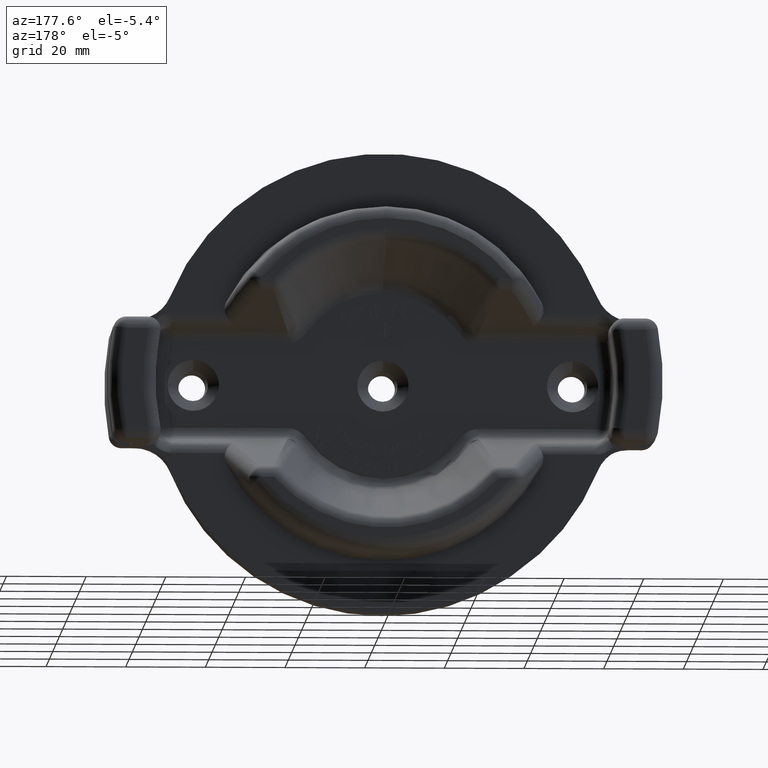
[diagram: clean part render]
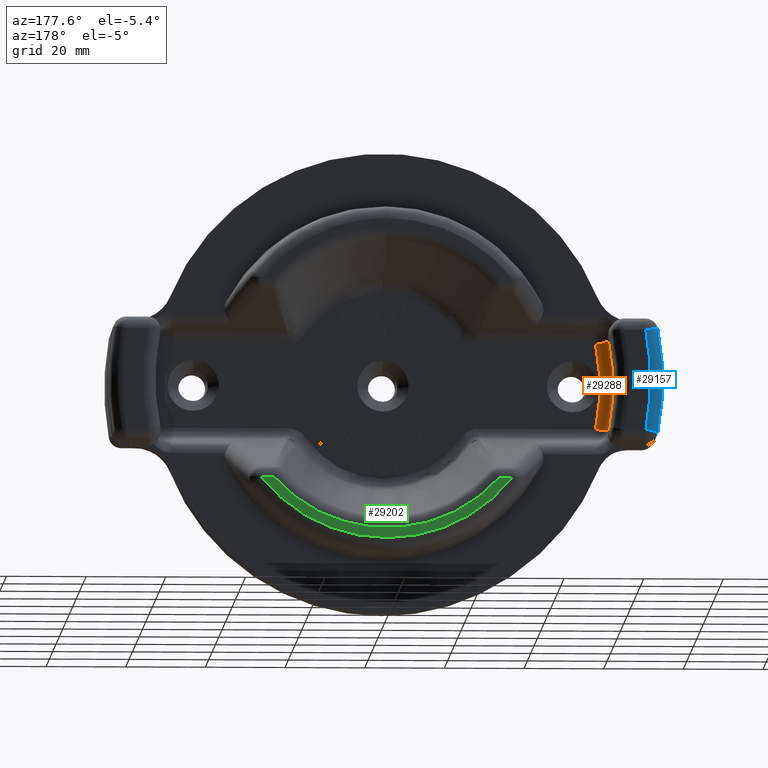
[diagram: same view with three faces highlighted in distinct colors, each labeled with its STEP entity id]
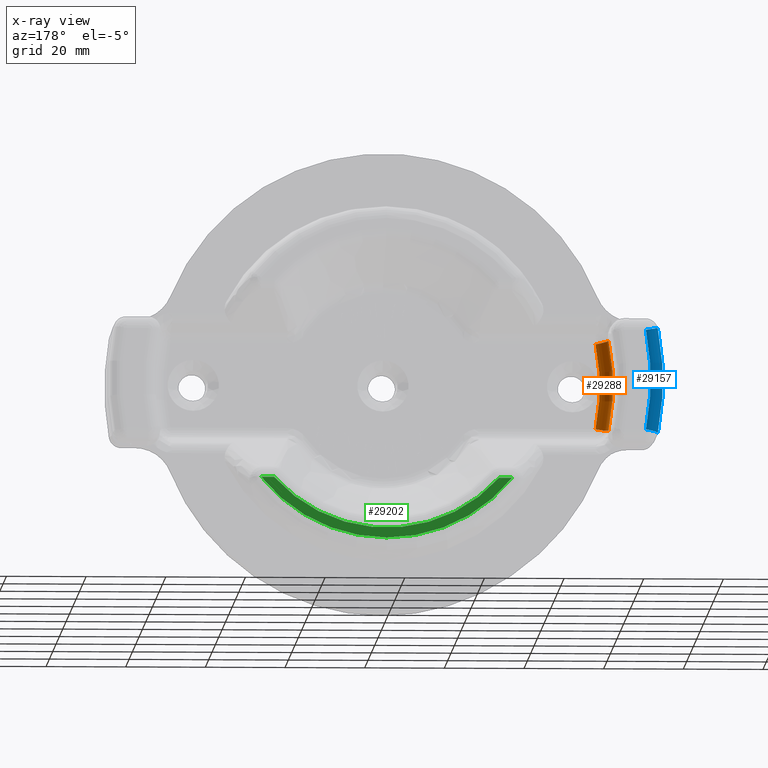
[diagram: x-ray of the same camera — body ghosted, the three highlighted faces saturated]
A machine part, auxiliary view with three faces highlighted in distinct colors.
The next image is the same camera in x-ray (body ghosted, the three faces saturated) — at least one of them is partly hidden behind the body in this view.
Their STEP definitions:

[orange] entity #29288 — the highlighted toroidal blend (fillet) surface has major radius 54.4461 mm and minor (blend) radius 3.175 mm.
#1205 = CARTESIAN_POINT ( 'NONE',  ( 0.0000000000000000000, 0.4978184491953395200, 0.0000000000000000000 ) ) ;
#1208 = DIRECTION ( 'NONE',  ( -0.0000000000000000000, -1.000000000000000000, -0.0000000000000000000 ) ) ;
#1209 = DIRECTION ( 'NONE',  ( 0.0000000000000000000, 0.0000000000000000000, 1.000000000000000000 ) ) ;
#2585 = CARTESIAN_POINT ( 'NONE',  ( -2.224479389068684000, 0.4978184491951426800, 0.4448759446635918700 ) ) ;
#2586 = CARTESIAN_POINT ( 'NONE',  ( -2.224479389068668500, 0.4978184491953395200, -0.4448759446636888500 ) ) ;
#3630 = CIRCLE ( 'NONE', #12365, 2.143547891466528500 ) ;
#3754 = EDGE_LOOP ( 'NONE', ( #15583, #15582, #15577, #15602 ) ) ;
#6840 = CARTESIAN_POINT ( 'NONE',  ( -2.101925261820744200, 0.3750000000000000600, -0.4203662173990631000 ) ) ;
#6877 = CARTESIAN_POINT ( 'NONE',  ( -2.101925261820744200, 0.3750000000000000600, 0.4203662173990632700 ) ) ;
#10179 = VERTEX_POINT ( 'NONE', #2585 ) ;
#10180 = VERTEX_POINT ( 'NONE', #2586 ) ;
#11839 = AXIS2_PLACEMENT_3D ( 'NONE', #25211, #25215, #25219 ) ;
#12365 = AXIS2_PLACEMENT_3D ( 'NONE', #29494, #29515, #29516 ) ;
#12436 = AXIS2_PLACEMENT_3D ( 'NONE', #22175, #22176, #22177 ) ;
#12437 = AXIS2_PLACEMENT_3D ( 'NONE', #22178, #22180, #22181 ) ;
#15577 = ORIENTED_EDGE ( 'NONE', *, *, #24147, .T. ) ;
#15582 = ORIENTED_EDGE ( 'NONE', *, *, #21729, .F. ) ;
#15583 = ORIENTED_EDGE ( 'NONE', *, *, #24146, .T. ) ;
#15602 = ORIENTED_EDGE ( 'NONE', *, *, #16438, .F. ) ;
#16438 = EDGE_CURVE ( 'NONE', #10179, #10180, #28478, .T. ) ;
#21062 = AXIS2_PLACEMENT_3D ( 'NONE', #1205, #1208, #1209 ) ;
#21729 = EDGE_CURVE ( 'NONE', #28753, #28775, #3630, .T. ) ;
#22175 = CARTESIAN_POINT ( 'NONE',  ( -2.101925261820744200, 0.4999999999999997200, 0.4203662173990630500 ) ) ;
#22176 = DIRECTION ( 'NONE',  ( 0.1961076862643361400, 1.071520787046638400E-015, 0.9805823654278353900 ) ) ;
#22177 = DIRECTION ( 'NONE',  ( 0.9805823654278353900, 0.0000000000000000000, -0.1961076862643361400 ) ) ;
#22178 = CARTESIAN_POINT ( 'NONE',  ( -2.101925261820744200, 0.5000000000000000000, -0.4203662173990632700 ) ) ;
#22180 = DIRECTION ( 'NONE',  ( 0.1961076862674923100, 0.0000000000000000000, -0.9805823654272041200 ) ) ;
#22181 = DIRECTION ( 'NONE',  ( -0.9805823654272042300, 0.0000000000000000000, -0.1961076862674920900 ) ) ;
#24146 = EDGE_CURVE ( 'NONE', #10179, #28775, #30176, .T. ) ;
#24147 = EDGE_CURVE ( 'NONE', #28753, #10180, #30177, .T. ) ;
#25211 = CARTESIAN_POINT ( 'NONE',  ( 0.0000000000000000000, 0.5000000000000000000, 0.0000000000000000000 ) ) ;
#25215 = DIRECTION ( 'NONE',  ( 0.0000000000000000000, 1.000000000000000000, 0.0000000000000000000 ) ) ;
#25219 = DIRECTION ( 'NONE',  ( 0.0000000000000000000, 0.0000000000000000000, 1.000000000000000000 ) ) ;
#26199 = TOROIDAL_SURFACE ( 'NONE', #11839, 2.143547891466528500, 0.1250000000000000000 ) ;
#26202 = FACE_OUTER_BOUND ( 'NONE', #3754, .T. ) ;
#28478 = CIRCLE ( 'NONE', #21062, 2.268528853361077700 ) ;
#28753 = VERTEX_POINT ( 'NONE', #6840 ) ;
#28775 = VERTEX_POINT ( 'NONE', #6877 ) ;
#29288 = ADVANCED_FACE ( 'NONE', ( #26202 ), #26199, .F. ) ;
#29494 = CARTESIAN_POINT ( 'NONE',  ( 0.0000000000000000000, 0.3750000000000000600, 0.0000000000000000000 ) ) ;
#29515 = DIRECTION ( 'NONE',  ( 0.0000000000000000000, 1.000000000000000000, 0.0000000000000000000 ) ) ;
#29516 = DIRECTION ( 'NONE',  ( 0.0000000000000000000, 0.0000000000000000000, 1.000000000000000000 ) ) ;
#30176 = CIRCLE ( 'NONE', #12436, 0.1250000000000000300 ) ;
#30177 = CIRCLE ( 'NONE', #12437, 0.1249999999999999700 ) ;

[blue] entity #29157 — the highlighted toroidal blend (fillet) surface has major radius 66.3829 mm and minor (blend) radius 3.175 mm.
#1144 = CARTESIAN_POINT ( 'NONE',  ( 0.0000000000000000000, 1.155000000000000000, 0.0000000000000000000 ) ) ;
#1147 = DIRECTION ( 'NONE',  ( 0.0000000000000000000, 1.000000000000000000, 0.0000000000000000000 ) ) ;
#1148 = DIRECTION ( 'NONE',  ( 0.0000000000000000000, 0.0000000000000000000, 1.000000000000000000 ) ) ;
#1174 = CARTESIAN_POINT ( 'NONE',  ( 0.0000000000000000000, 1.030000000000000200, 0.0000000000000000000 ) ) ;
#1179 = DIRECTION ( 'NONE',  ( -0.0000000000000000000, -1.000000000000000000, -0.0000000000000000000 ) ) ;
#1180 = DIRECTION ( 'NONE',  ( 0.0000000000000000000, 0.0000000000000000000, 1.000000000000000000 ) ) ;
#2572 = CARTESIAN_POINT ( 'NONE',  ( -2.689353734233851200, 1.030000000000005100, 0.5164869235154344600 ) ) ;
#2577 = CARTESIAN_POINT ( 'NONE',  ( -2.689353734233851200, 1.030000000000053300, -0.5164869235154336800 ) ) ;
#3651 = CIRCLE ( 'NONE', #12382, 0.1249999999999997500 ) ;
#3652 = CIRCLE ( 'NONE', #12383, 0.1249999999999997900 ) ;
#3897 = ORIENTED_EDGE ( 'NONE', *, *, #21751, .F. ) ;
#3898 = ORIENTED_EDGE ( 'NONE', *, *, #16430, .F. ) ;
#5745 = DIRECTION ( 'NONE',  ( 0.0000000000000000000, 1.000000000000000000, 0.0000000000000000000 ) ) ;
#5755 = CARTESIAN_POINT ( 'NONE',  ( 0.0000000000000000000, 1.030000000000000200, 0.0000000000000000000 ) ) ;
#5760 = DIRECTION ( 'NONE',  ( 0.0000000000000000000, 0.0000000000000000000, 1.000000000000000000 ) ) ;
#8405 = EDGE_LOOP ( 'NONE', ( #26481, #26482, #3897, #3898 ) ) ;
#10166 = VERTEX_POINT ( 'NONE', #2572 ) ;
#10167 = VERTEX_POINT ( 'NONE', #2577 ) ;
#11646 = AXIS2_PLACEMENT_3D ( 'NONE', #5755, #5745, #5760 ) ;
#12382 = AXIS2_PLACEMENT_3D ( 'NONE', #29586, #29587, #29588 ) ;
#12383 = AXIS2_PLACEMENT_3D ( 'NONE', #29590, #29598, #29599 ) ;
#14510 = VERTEX_POINT ( 'NONE', #14942 ) ;
#14513 = VERTEX_POINT ( 'NONE', #14945 ) ;
#14942 = CARTESIAN_POINT ( 'NONE',  ( -2.566597036487190800, 1.155000000000000000, 0.4929116576985888000 ) ) ;
#14945 = CARTESIAN_POINT ( 'NONE',  ( -2.566597036487190000, 1.155000000000000000, -0.4929116576985898600 ) ) ;
#16422 = EDGE_CURVE ( 'NONE', #14513, #14510, #28468, .T. ) ;
#16430 = EDGE_CURVE ( 'NONE', #10166, #10167, #28471, .T. ) ;
#21055 = AXIS2_PLACEMENT_3D ( 'NONE', #1144, #1147, #1148 ) ;
#21064 = AXIS2_PLACEMENT_3D ( 'NONE', #1174, #1179, #1180 ) ;
#21749 = EDGE_CURVE ( 'NONE', #10166, #14510, #3651, .T. ) ;
#21751 = EDGE_CURVE ( 'NONE', #10167, #14513, #3652, .T. ) ;
#26481 = ORIENTED_EDGE ( 'NONE', *, *, #21749, .T. ) ;
#26482 = ORIENTED_EDGE ( 'NONE', *, *, #16422, .F. ) ;
#28468 = CIRCLE ( 'NONE', #21055, 2.613500000000000600 ) ;
#28471 = CIRCLE ( 'NONE', #21064, 2.738500000000000200 ) ;
#29157 = ADVANCED_FACE ( 'NONE', ( #30600 ), #30610, .T. ) ;
#29586 = CARTESIAN_POINT ( 'NONE',  ( -2.566597036487190800, 1.030000000000068600, 0.4929116576985887500 ) ) ;
#29587 = DIRECTION ( 'NONE',  ( -0.1886021265347571400, 2.878075240428360000E-016, -0.9820535819732889600 ) ) ;
#29588 = DIRECTION ( 'NONE',  ( -0.9820535819732889600, 0.0000000000000000000, 0.1886021265347576900 ) ) ;
#29590 = CARTESIAN_POINT ( 'NONE',  ( -2.566597036487190400, 1.030000000000000200, -0.4929116576985914100 ) ) ;
#29598 = DIRECTION ( 'NONE',  ( 0.1886021265347586600, 0.0000000000000000000, -0.9820535819732886300 ) ) ;
#29599 = DIRECTION ( 'NONE',  ( -0.9820535819732886300, 0.0000000000000000000, -0.1886021265347592500 ) ) ;
#30600 = FACE_OUTER_BOUND ( 'NONE', #8405, .T. ) ;
#30610 = TOROIDAL_SURFACE ( 'NONE', #11646, 2.613500000000000600, 0.1250000000000000000 ) ;

[green] entity #29202 — the highlighted planar face has unit normal (0, 1, 0).
#6393 = CARTESIAN_POINT ( 'NONE',  ( 0.0000000000000000000, 1.250000000000000000, 0.0000000000000000000 ) ) ;
#6394 = PLANE ( 'NONE',  #11715 ) ;
#6399 = DIRECTION ( 'NONE',  ( 0.0000000000000000000, 1.000000000000000000, 0.0000000000000000000 ) ) ;
#6400 = DIRECTION ( 'NONE',  ( 0.0000000000000000000, 0.0000000000000000000, -1.000000000000000000 ) ) ;
#6559 = CARTESIAN_POINT ( 'NONE',  ( 0.0000000000000000000, 1.250000000000000000, 0.0000000000000000000 ) ) ;
#6563 = DIRECTION ( 'NONE',  ( -0.0000000000000000000, -1.000000000000000000, -0.0000000000000000000 ) ) ;
#6564 = DIRECTION ( 'NONE',  ( 1.776356839400250500E-015, 0.0000000000000000000, 1.000000000000000000 ) ) ;
#6572 = CARTESIAN_POINT ( 'NONE',  ( 0.0000000000000000000, 1.250000000000000000, 0.0000000000000000000 ) ) ;
#6573 = CARTESIAN_POINT ( 'NONE',  ( -1.127522804321582600, 1.250000000000000000, -0.9876529834865611600 ) ) ;
#6574 = DIRECTION ( 'NONE',  ( 1.000000000000000000, -0.0000000000000000000, -0.0000000000000000000 ) ) ;
#6576 = DIRECTION ( 'NONE',  ( 0.0000000000000000000, 1.000000000000000000, 0.0000000000000000000 ) ) ;
#6577 = DIRECTION ( 'NONE',  ( 0.0000000000000000000, 0.0000000000000000000, 1.000000000000000000 ) ) ;
#6578 = CARTESIAN_POINT ( 'NONE',  ( -4.965344844313921000E-016, 1.250000000000000000, -0.9876529834865607200 ) ) ;
#6579 = DIRECTION ( 'NONE',  ( 1.000000000000000000, -0.0000000000000000000, -5.027418463097758600E-016 ) ) ;
#8494 = EDGE_LOOP ( 'NONE', ( #27986, #27985, #27984, #27983 ) ) ;
#11715 = AXIS2_PLACEMENT_3D ( 'NONE', #6393, #6399, #6400 ) ;
#12478 = AXIS2_PLACEMENT_3D ( 'NONE', #6559, #6563, #6564 ) ;
#12479 = AXIS2_PLACEMENT_3D ( 'NONE', #6572, #6576, #6577 ) ;
#14461 = VERTEX_POINT ( 'NONE', #14893 ) ;
#14462 = VERTEX_POINT ( 'NONE', #14894 ) ;
#14463 = VERTEX_POINT ( 'NONE', #14895 ) ;
#14464 = VERTEX_POINT ( 'NONE', #14896 ) ;
#14893 = CARTESIAN_POINT ( 'NONE',  ( 1.240658715147869000, 1.250000000000000000, -0.9876529834865612800 ) ) ;
#14894 = CARTESIAN_POINT ( 'NONE',  ( -1.240658715147869900, 1.250000000000000000, -0.9876529834865611600 ) ) ;
#14895 = CARTESIAN_POINT ( 'NONE',  ( -1.112498531903104000, 1.250000000000000000, -0.9876529834865607200 ) ) ;
#14896 = CARTESIAN_POINT ( 'NONE',  ( 1.112498531903103800, 1.250000000000000000, -0.9876529834865608300 ) ) ;
#24541 = EDGE_CURVE ( 'NONE', #14463, #14464, #30329, .T. ) ;
#24544 = EDGE_CURVE ( 'NONE', #14462, #14463, #30327, .T. ) ;
#24545 = EDGE_CURVE ( 'NONE', #14461, #14462, #30333, .T. ) ;
#24546 = EDGE_CURVE ( 'NONE', #14464, #14461, #30328, .T. ) ;
#27983 = ORIENTED_EDGE ( 'NONE', *, *, #24546, .T. ) ;
#27984 = ORIENTED_EDGE ( 'NONE', *, *, #24541, .T. ) ;
#27985 = ORIENTED_EDGE ( 'NONE', *, *, #24544, .T. ) ;
#27986 = ORIENTED_EDGE ( 'NONE', *, *, #24545, .T. ) ;
#29202 = ADVANCED_FACE ( 'NONE', ( #30693 ), #6394, .T. ) ;
#30326 = VECTOR ( 'NONE', #6579, 39.37007874015748100 ) ;
#30327 = LINE ( 'NONE', #6573, #30330 ) ;
#30328 = LINE ( 'NONE', #6578, #30326 ) ;
#30329 = CIRCLE ( 'NONE', #12478, 1.487652983486561100 ) ;
#30330 = VECTOR ( 'NONE', #6574, 39.37007874015748100 ) ;
#30333 = CIRCLE ( 'NONE', #12479, 1.585778188544119300 ) ;
#30693 = FACE_OUTER_BOUND ( 'NONE', #8494, .T. ) ;